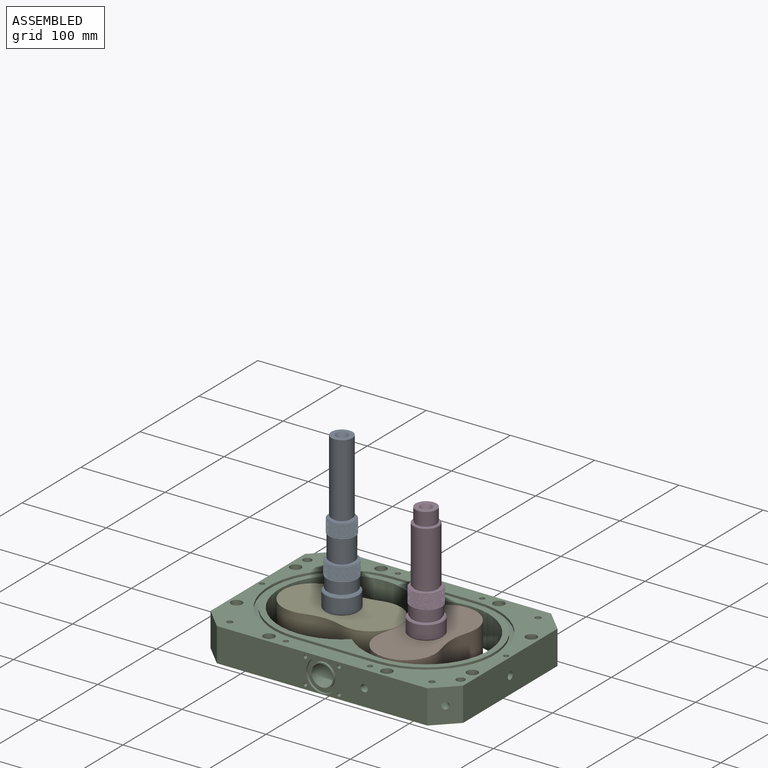
[diagram: assembled view]
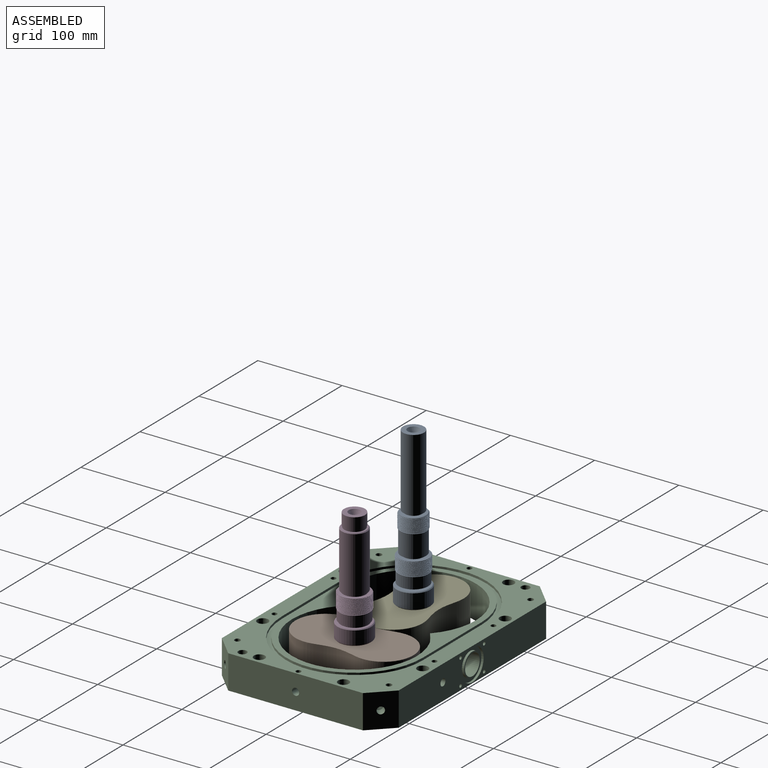
[diagram: assembled view, second angle]
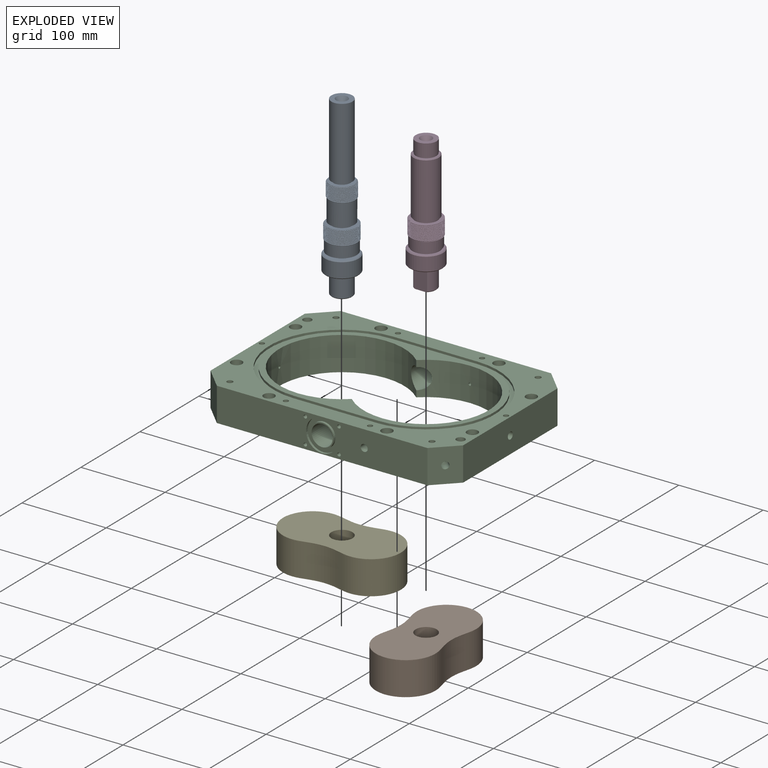
[diagram: exploded view]
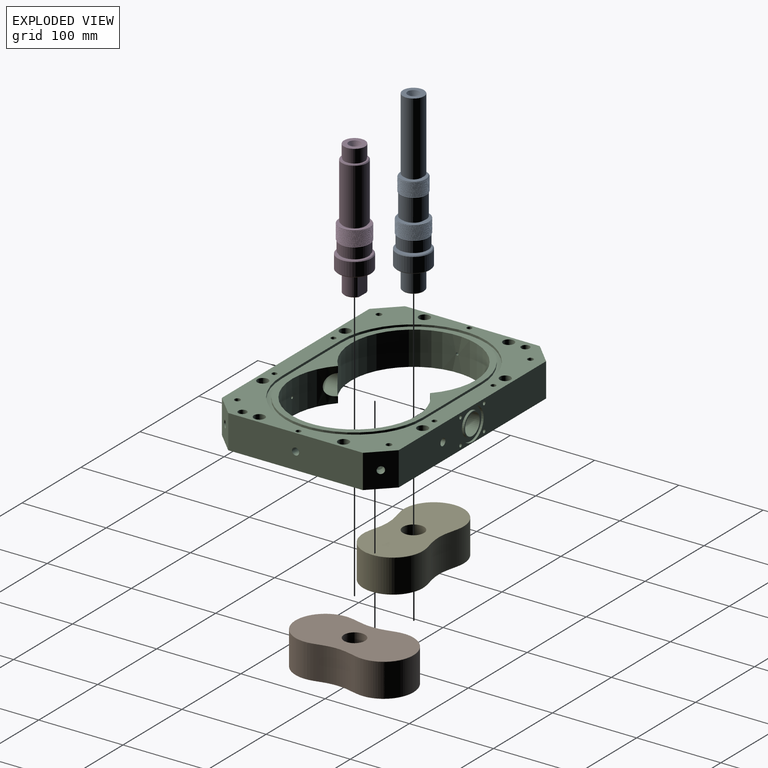
[diagram: exploded view, second angle]
ASSEMBLY  parts=5 mates=4
PART A: 45 faces, bbox 40.5x210.5x40.5 mm
  f0: cylinder r=15mm len=30mm, axis (0,1,0), area 2349.7mm2, adj f11,f12,f36,f38,f39,f40,f41
  f1: cylinder r=15.75mm len=31.5mm, axis (0,1,0), area 254.8mm2, adj f11,f28,f34,f35
  f2: cylinder r=18.25mm len=36.5mm, axis (0,1,0), area 277.8mm2, adj f14,f15,f32,f33
  f3: cone r=3.15mm half-angle=59deg, axis (0,-1,0), area 36.4mm2, adj f4
  f4: cylinder r=3.15mm len=6.3mm, axis (0,1,0), area 68.1mm2, adj f3,f5
  f5: cone r=7mm half-angle=30deg, axis (0,-1,0), area 245.5mm2, adj f4,f6
  f6: plane 25x25mm, normal (0,-1,0), area 336.9mm2, adj f5,f7
  f7: cylinder r=12.5mm len=86mm, axis (0,1,0), area 6754.4mm2, adj f6,f8
  f8: plane 25x25mm, normal (0,1,0), area 177.5mm2, adj f7,f9
  f9: cylinder r=9.99mm len=19.98mm, axis (0,1,0), area 125.5mm2, adj f8,f10
  f10: plane 29.5x29.5mm, normal (0,-1,0), area 370.1mm2, adj f9,f28
  f11: plane 30.98x30.86mm, normal (0,1,0), area 31.3mm2, adj f0,f1,f34,f35
  f12: plane 30x30mm, normal (0,1,0), area 244.6mm2, adj f0,f13
  f13: cylinder r=12.13mm len=24.26mm, axis (0,1,0), area 152.4mm2, adj f12,f14
  f14: plane 36.1x36.08mm, normal (0,-1,0), area 535.3mm2, adj f2,f13,f31,f32,f33
  f15: plane 35.98x35.87mm, normal (0,1,0), area 36.4mm2, adj f2,f16,f32,f33
  f16: cylinder r=17.5mm len=35mm, axis (0,1,0), area 1484.4mm2, adj f15,f17,f30
  f17: plane 35x35mm, normal (0,1,0), area 430.6mm2, adj f16,f18
  f18: cylinder r=13.01mm len=26.01mm, axis (0,1,0), area 163.5mm2, adj f17,f19
  f19: plane 38x38mm, normal (0,-1,0), area 602.6mm2, adj f18,f27
  f20: cylinder r=20mm len=40mm, axis (0,1,0), area 2199.1mm2, adj f26,f27
  f21: plane 38x38mm, normal (0,1,0), area 835.3mm2, adj f22,f26
  f22: cylinder r=9.75mm len=19.51mm, axis (0,1,0), area 122.6mm2, adj f21,f23
  f23: plane 25x25mm, normal (0,-1,0), area 192.1mm2, adj f22,f24
  f24: cylinder r=12.5mm len=25mm, axis (0,1,0), area 1727.9mm2, adj f23,f29
  f25: plane 23x23mm, normal (0,1,0), area 351.9mm2, adj f29,f44
  f26: cone r=19mm half-angle=45deg, axis (0,-1,0), area 173.3mm2, adj f20,f21
  f27: cone r=20mm half-angle=45deg, axis (0,1,0), area 173.3mm2, adj f19,f20
  f28: cone r=15.75mm half-angle=45deg, axis (0,1,0), area 76.2mm2, adj f1,f10,f34,f35,f37
  f29: cone r=11.5mm half-angle=45deg, axis (0,-1,0), area 106.6mm2, adj f24,f25
  f30: plane 19.72x18.49mm, normal (0,-1,0), area 1mm2, adj f16,f31,f32,f33
  f31: bspline ~34.94x34.94mm, area 454mm2, adj f14,f30,f32,f33
  f32: bspline ~36.66x36.66mm, area 1109.3mm2, adj f2,f14,f15,f30,f31
  f33: bspline ~36.67x36.67mm, area 1125.4mm2, adj f2,f14,f15,f30,f31
  f34: bspline ~31.67x31.67mm, area 966mm2, adj f1,f11,f28,f36,f37
  f35: bspline ~31.66x31.66mm, area 943mm2, adj f1,f11,f28,f36,f37
  f36: plane 17x15.78mm, normal (0,-1,0), area 0.8mm2, adj f0,f34,f35,f37
  f37: bspline ~29.94x29.94mm, area 394.5mm2, adj f28,f34,f35,f36
  f38: cylinder r=4mm len=8mm, axis (0,0,-1), area 46.9mm2, adj f0,f39,f41,f42
  f39: plane 12x3.46mm, normal (1,0,0), area 41.5mm2, adj f0,f38,f40,f42
  f40: cylinder r=4mm len=8mm, axis (0,0,-1), area 46.9mm2, adj f0,f39,f41,f42
  f41: plane 12x3.46mm, normal (-1,0,0), area 41.5mm2, adj f0,f38,f40,f42
  f42: plane 20x8mm, normal (0,0,1), area 146.3mm2, adj f38,f39,f40,f41
  f43: cone r=4.5mm half-angle=59deg, axis (0,1,0), area 74.2mm2, adj f44
  f44: cylinder r=4.5mm len=19mm, axis (0,1,0), area 537.2mm2, adj f25,f43
PART B: 23 faces, bbox 70.7x140x39.8 mm
  f0: extruded ~39.8x34.79mm, area 2258.3mm2, adj f1,f13,f14,f15
  f1: plane 39.8x0.03mm, normal (1,0,0), area 1.2mm2, adj f0,f2,f14,f15
  f2: extruded ~39.8x35.33mm, area 1433.1mm2, adj f1,f3,f14,f15
  f3: extruded ~39.8x35.33mm, area 1433.1mm2, adj f2,f4,f14,f15
  f4: plane 39.8x0.03mm, normal (1,0,0), area 1.2mm2, adj f3,f5,f14,f15
  f5: extruded ~39.8x34.79mm, area 2258.3mm2, adj f4,f6,f14,f15
  f6: plane 39.8x1.14mm, normal (0,-1,0), area 45.4mm2, adj f5,f7,f14,f15
  f7: extruded ~39.8x34.79mm, area 2258.3mm2, adj f6,f8,f14,f15
  f8: plane 39.8x0.03mm, normal (-1,0,0), area 1.2mm2, adj f7,f9,f14,f15
  f9: extruded ~39.8x35.33mm, area 1433.1mm2, adj f8,f10,f14,f15
  f10: extruded ~39.8x35.33mm, area 1433.1mm2, adj f9,f11,f14,f15
  f11: plane 39.8x0.03mm, normal (-1,0,0), area 1.2mm2, adj f10,f12,f14,f15
  f12: extruded ~39.8x34.79mm, area 2258.3mm2, adj f11,f13,f14,f15
  f13: plane 39.8x1.14mm, normal (0,1,0), area 45.4mm2, adj f0,f12,f14,f15
  f14: plane 140x70.72mm, normal (0,0,-1), area 8007.2mm2, adj f0,f1,f2,f3,f4,f5,f6,f7
  f15: plane 140x70.72mm, normal (0,0,1), area 7858.7mm2, adj f0,f1,f2,f3,f4,f5,f6,f7
  f16: cylinder r=12.5mm len=25mm, axis (0,0,1), area 1955.6mm2, adj f15,f17
  f17: plane 25x25mm, normal (0,0,1), area 412.3mm2, adj f16,f18
  f18: cylinder r=5mm len=10mm, axis (0,0,1), area 153.9mm2, adj f17,f19
  f19: plane 20x20mm, normal (0,0,-1), area 235.6mm2, adj f18,f20
  f20: cylinder r=10mm len=20mm, axis (0,0,1), area 628.3mm2, adj f14,f19
  f21: cylinder r=3mm len=10mm, axis (0,0,1), area 188.5mm2, adj f14,f22
  f22: cone r=3mm half-angle=59deg, axis (0,0,-1), area 33mm2, adj f21
PART C: 110 faces, bbox 300x210x40 mm
  f0: plane 250x40mm, normal (0,-1,0), area 8754.6mm2, adj f7,f8,f13,f14,f84,f87,f89,f91
  f1: plane 28x28mm, normal (0,-1,0), area 124.9mm2, adj f82,f83
  f2: cylinder r=74.08mm len=148.16mm, axis (0,0,-1), area 13075.2mm2, adj f3,f5,f14,f70,f82,f103
  f3: cylinder r=74.08mm len=148.16mm, axis (0,0,-1), area 13047.2mm2, adj f2,f5,f14,f70,f82,f94,f95,f96
  f4: plane 28x28mm, normal (0,1,0), area 124.9mm2, adj f70,f71
  f5: plane 262x162mm, normal (0,0,1), area 5973.5mm2, adj f2,f3,f20,f21,f22,f23
  f6: plane 160x40mm, normal (-1,0,0), area 6392.9mm2, adj f7,f12,f13,f14,f103
  f7: plane 40x25mm, normal (-0.71,-0.71,0), area 1414.2mm2, adj f0,f6,f13,f14
  f8: plane 40x25mm, normal (0.71,-0.71,0), area 1358.4mm2, adj f0,f9,f13,f14,f107
  f9: plane 160x40mm, normal (1,0,0), area 6344.1mm2, adj f8,f10,f13,f14,f102
  f10: plane 40x25mm, normal (0.71,0.71,0), area 1358.4mm2, adj f9,f11,f13,f14,f98
  f11: plane 250x40mm, normal (0,1,0), area 8754.6mm2, adj f10,f12,f13,f14,f72,f75,f77,f79
  f12: plane 40x25mm, normal (-0.71,0.71,0), area 1414.2mm2, adj f6,f11,f13,f14
  f13: plane 300x210mm, normal (0,0,1), area 19780.9mm2, adj f0,f6,f7,f8,f9,f10,f11,f12
  f14: plane 300x210mm, normal (0,0,-1), area 30300.5mm2, adj f0,f2,f3,f6,f7,f8,f9,f10
  f15: cylinder r=86mm len=172mm, axis (0,0,1), area 729.5mm2, adj f13,f16,f18,f19
  f16: plane 100x2.7mm, normal (0,-1,0), area 270mm2, adj f13,f15,f17,f19
  f17: cylinder r=86mm len=172mm, axis (0,0,1), area 729.5mm2, adj f13,f16,f18,f19
  f18: plane 100x2.7mm, normal (0,1,0), area 270mm2, adj f13,f15,f17,f19
  f19: plane 272x172mm, normal (0,0,1), area 3623.2mm2, adj f15,f16,f17,f18,f20,f21,f22,f23
  f20: cylinder r=81mm len=162mm, axis (0,0,1), area 687.1mm2, adj f5,f19,f21,f23
  f21: plane 100x2.7mm, normal (0,1,0), area 270mm2, adj f5,f19,f20,f22
  f22: cylinder r=81mm len=162mm, axis (0,0,1), area 687.1mm2, adj f5,f19,f21,f23
  f23: plane 100x2.7mm, normal (0,-1,0), area 270mm2, adj f5,f19,f20,f22
  f24: cylinder r=5mm len=40mm, axis (0,0,1), area 1256.6mm2, adj f13,f14
  f25: cylinder r=5mm len=40mm, axis (0,0,1), area 1256.6mm2, adj f13,f14
  f26: cone r=3mm half-angle=59deg, axis (0,0,1), area 33mm2, adj f27
  f27: cylinder r=3mm len=10mm, axis (0,0,1), area 188.5mm2, adj f13,f26
  f28: cone r=3mm half-angle=59deg, axis (0,0,1), area 33mm2, adj f29
  f29: cylinder r=3mm len=10mm, axis (0,0,1), area 188.5mm2, adj f13,f28
  f30: cone r=3mm half-angle=59deg, axis (0,0,1), area 33mm2, adj f31
  f31: cylinder r=3mm len=10mm, axis (0,0,1), area 188.5mm2, adj f13,f30
  f32: cone r=3mm half-angle=59deg, axis (0,0,1), area 33mm2, adj f33
  f33: cylinder r=3mm len=10mm, axis (0,0,1), area 188.5mm2, adj f13,f32
  f34: cone r=3mm half-angle=59deg, axis (0,0,1), area 33mm2, adj f35
  f35: cylinder r=3mm len=10mm, axis (0,0,1), area 188.5mm2, adj f13,f34
  f36: cone r=3mm half-angle=59deg, axis (0,0,1), area 33mm2, adj f37
  f37: cylinder r=3mm len=10mm, axis (0,0,1), area 188.5mm2, adj f13,f36
  f38: cone r=3.4mm half-angle=59deg, axis (0,0,1), area 42.4mm2, adj f39
  f39: cylinder r=3.4mm len=19.75mm, axis (0,0,1), area 421.9mm2, adj f13,f38
  f40: cone r=3.4mm half-angle=59deg, axis (0,0,1), area 42.4mm2, adj f41
  f41: cylinder r=3.4mm len=19.75mm, axis (0,0,1), area 421.9mm2, adj f13,f40
  f42: cone r=3.4mm half-angle=59deg, axis (0,0,1), area 42.4mm2, adj f43
  f43: cylinder r=3.4mm len=19.75mm, axis (0,0,1), area 421.9mm2, adj f13,f42
  f44: cone r=3.4mm half-angle=59deg, axis (0,0,1), area 42.4mm2, adj f45
  f45: cylinder r=3.4mm len=19.75mm, axis (0,0,1), area 421.9mm2, adj f13,f44
  f46: cylinder r=4.25mm len=20mm, axis (0,0,1), area 534.1mm2, adj f14,f47
  f47: plane 13x13mm, normal (0,0,1), area 76mm2, adj f46,f48
  f48: cylinder r=6.5mm len=20mm, axis (0,0,1), area 816.8mm2, adj f13,f47
  f49: cylinder r=4.25mm len=20mm, axis (0,0,1), area 534.1mm2, adj f14,f50
  f50: plane 13x13mm, normal (0,0,1), area 76mm2, adj f49,f51
  f51: cylinder r=6.5mm len=20mm, axis (0,0,1), area 816.8mm2, adj f13,f50
  f52: cylinder r=4.25mm len=20mm, axis (0,0,1), area 534.1mm2, adj f14,f53
  f53: plane 13x13mm, normal (0,0,1), area 76mm2, adj f52,f54
  f54: cylinder r=6.5mm len=20mm, axis (0,0,1), area 816.8mm2, adj f13,f53
  f55: cylinder r=4.25mm len=20mm, axis (0,0,1), area 534.1mm2, adj f14,f56
  f56: plane 13x13mm, normal (0,0,1), area 76mm2, adj f55,f57
  f57: cylinder r=6.5mm len=20mm, axis (0,0,1), area 816.8mm2, adj f13,f56
  f58: cylinder r=4.25mm len=20mm, axis (0,0,1), area 534.1mm2, adj f14,f59
  f59: plane 13x13mm, normal (0,0,1), area 76mm2, adj f58,f60
  f60: cylinder r=6.5mm len=20mm, axis (0,0,1), area 816.8mm2, adj f13,f59
  f61: cylinder r=4.25mm len=20mm, axis (0,0,1), area 534.1mm2, adj f14,f62
  f62: plane 13x13mm, normal (0,0,1), area 76mm2, adj f61,f63
  f63: cylinder r=6.5mm len=20mm, axis (0,0,1), area 816.8mm2, adj f13,f62
  f64: cylinder r=4.25mm len=20mm, axis (0,0,1), area 534.1mm2, adj f14,f65
  f65: plane 13x13mm, normal (0,0,1), area 76mm2, adj f64,f66
  f66: cylinder r=6.5mm len=20mm, axis (0,0,1), area 816.8mm2, adj f13,f65
  f67: cylinder r=4.25mm len=20mm, axis (0,0,1), area 534.1mm2, adj f14,f68
  f68: plane 13x13mm, normal (0,0,1), area 76mm2, adj f67,f69
  f69: cylinder r=6.5mm len=20mm, axis (0,0,1), area 816.8mm2, adj f13,f68
  f70: cylinder r=12.5mm len=50.34mm, axis (0,1,0), area 3470.6mm2, adj f2,f3,f4
  f71: cylinder r=14mm len=28mm, axis (0,1,0), area 237.5mm2, adj f4,f73
  f72: cylinder r=19mm len=38mm, axis (0,1,0), area 322.3mm2, adj f11,f73
  f73: plane 38x38mm, normal (0,1,0), area 518.4mm2, adj f71,f72
  f74: cone r=2.1mm half-angle=59deg, axis (0,1,0), area 16.2mm2, adj f75
  f75: cylinder r=2.1mm len=10mm, axis (0,1,0), area 131.9mm2, adj f11,f74
  f76: cone r=2.1mm half-angle=59deg, axis (0,1,0), area 16.2mm2, adj f77
  f77: cylinder r=2.1mm len=10mm, axis (0,1,0), area 131.9mm2, adj f11,f76
  f78: cone r=2.1mm half-angle=59deg, axis (0,1,0), area 16.2mm2, adj f79
  f79: cylinder r=2.1mm len=10mm, axis (0,1,0), area 131.9mm2, adj f11,f78
  f80: cone r=2.1mm half-angle=59deg, axis (0,1,0), area 16.2mm2, adj f81
  f81: cylinder r=2.1mm len=10mm, axis (0,1,0), area 131.9mm2, adj f11,f80
  f82: cylinder r=12.5mm len=50.34mm, axis (0,-1,0), area 3470.7mm2, adj f1,f2,f3
  f83: cylinder r=14mm len=28mm, axis (0,-1,0), area 237.5mm2, adj f1,f85
  f84: cylinder r=19mm len=38mm, axis (0,-1,0), area 322.3mm2, adj f0,f85
  f85: plane 38x38mm, normal (0,-1,0), area 518.4mm2, adj f83,f84
  f86: cone r=2.1mm half-angle=59deg, axis (0,-1,0), area 16.2mm2, adj f87
  f87: cylinder r=2.1mm len=10mm, axis (0,-1,0), area 131.9mm2, adj f0,f86
  f88: cone r=2.1mm half-angle=59deg, axis (0,-1,0), area 16.2mm2, adj f89
  f89: cylinder r=2.1mm len=10mm, axis (0,-1,0), area 131.9mm2, adj f0,f88
  f90: cone r=2.1mm half-angle=59deg, axis (0,-1,0), area 16.2mm2, adj f91
  f91: cylinder r=2.1mm len=10mm, axis (0,-1,0), area 131.9mm2, adj f0,f90
  f92: cone r=2.1mm half-angle=59deg, axis (0,-1,0), area 16.2mm2, adj f93
  f93: cylinder r=2.1mm len=10mm, axis (0,-1,0), area 131.9mm2, adj f0,f92
  f94: cylinder r=1.5mm len=14.29mm, axis (1,0,0), area 134.7mm2, adj f3,f101
  f95: cylinder r=1.5mm len=31.64mm, axis (0.71,0.71,0), area 392.6mm2, adj f3,f97
  f96: cylinder r=1.5mm len=19.29mm, axis (0,1,0), area 181.8mm2, adj f3,f99
  f97: cone r=4.22mm half-angle=59deg, axis (0.71,0.71,0), area 56.9mm2, adj f95,f98
  f98: cylinder r=4.22mm len=13.03mm, axis (0.71,0.71,0), area 264.9mm2, adj f10,f97
  f99: cone r=4.22mm half-angle=59deg, axis (0,1,0), area 56.9mm2, adj f96,f100
  f100: cylinder r=4.22mm len=10mm, axis (0,1,0), area 264.9mm2, adj f11,f99
  f101: cone r=4.22mm half-angle=59deg, axis (1,0,0), area 56.9mm2, adj f94,f102
  f102: cylinder r=4.22mm len=10mm, axis (1,0,0), area 264.9mm2, adj f9,f101
  f103: cylinder r=1.5mm len=25.92mm, axis (1,0,0), area 244.3mm2, adj f2,f6
  f104: cylinder r=1.5mm len=31.64mm, axis (0.71,-0.71,0), area 392.6mm2, adj f3,f106
  f105: cylinder r=1.5mm len=19.29mm, axis (0,-1,0), area 181.8mm2, adj f3,f108
  f106: cone r=4.22mm half-angle=59deg, axis (0.71,-0.71,0), area 56.9mm2, adj f104,f107
  f107: cylinder r=4.22mm len=13.03mm, axis (0.71,-0.71,0), area 264.9mm2, adj f8,f106
  f108: cone r=4.22mm half-angle=59deg, axis (0,-1,0), area 56.9mm2, adj f105,f109
  f109: cylinder r=4.22mm len=10mm, axis (0,-1,0), area 264.9mm2, adj f0,f108
PART D: 40 faces, bbox 40.5x160.5x40.5 mm
  f0: cylinder r=12.5mm len=22mm, axis (0,1,0), area 474.8mm2, adj f1,f31,f32,f37
  f1: plane 19x6.3mm, normal (0,1,0), area 25.5mm2, adj f0,f2,f31,f32
  f2: cylinder r=11.34mm len=19mm, axis (0,1,0), area 45mm2, adj f1,f9,f31,f32
  f3: cylinder r=3.15mm len=6.3mm, axis (0,1,0), area 68.1mm2, adj f4,f26
  f4: cone r=3.15mm half-angle=59deg, axis (0,1,0), area 36.4mm2, adj f3
  f5: plane 23x19mm, normal (0,-1,0), area 343.9mm2, adj f31,f32,f36,f37,f39
  f6: cylinder r=12.5mm len=22mm, axis (0,1,0), area 474.8mm2, adj f7,f31,f32,f36
  f7: plane 19x6.3mm, normal (0,1,0), area 25.5mm2, adj f6,f8,f31,f32
  f8: cylinder r=11.34mm len=19mm, axis (0,1,0), area 45mm2, adj f7,f9,f31,f32
  f9: plane 38x38mm, normal (0,-1,0), area 760.9mm2, adj f2,f8,f31,f32,f33
  f10: cylinder r=20mm len=40mm, axis (0,1,0), area 2010.6mm2, adj f33,f34
  f11: plane 38x38mm, normal (0,1,0), area 318.8mm2, adj f12,f34
  f12: cylinder r=16.11mm len=32.22mm, axis (0,1,0), area 202.4mm2, adj f11,f13
  f13: plane 35x35mm, normal (0,-1,0), area 146.7mm2, adj f12,f14
  f14: cylinder r=17.5mm len=35mm, axis (0,1,0), area 1319.5mm2, adj f13,f15,f27
  f15: plane 36x35.89mm, normal (0,-1,0), area 36.4mm2, adj f14,f16,f28,f30
  f16: cylinder r=18.25mm len=36.5mm, axis (0,1,0), area 287.6mm2, adj f15,f17,f28,f30
  f17: plane 36.11x36.08mm, normal (0,1,0), area 432.8mm2, adj f16,f18,f28,f29,f30
  f18: cylinder r=13.41mm len=26.82mm, axis (0,1,0), area 168.5mm2, adj f17,f19
  f19: plane 30x30mm, normal (0,-1,0), area 142.1mm2, adj f18,f20
  f20: cylinder r=15mm len=66mm, axis (0,1,0), area 6220.4mm2, adj f19,f35
  f21: plane 28x28mm, normal (0,1,0), area 159.8mm2, adj f22,f35
  f22: cylinder r=12.05mm len=24.09mm, axis (0,1,0), area 151.4mm2, adj f21,f23
  f23: plane 25x25mm, normal (0,-1,0), area 35mm2, adj f22,f24
  f24: cylinder r=12.5mm len=25mm, axis (0,1,0), area 1099.6mm2, adj f23,f25
  f25: plane 25x25mm, normal (0,1,0), area 336.9mm2, adj f24,f26
  f26: cone r=7mm half-angle=30deg, axis (0,1,0), area 245.5mm2, adj f3,f25
  f27: plane 19.77x18.54mm, normal (0,1,0), area 1mm2, adj f14,f28,f29,f30
  f28: bspline ~36.66x36.66mm, area 1208.6mm2, adj f15,f16,f17,f27,f29
  f29: bspline ~34.94x34.94mm, area 494.7mm2, adj f17,f27,f28,f30
  f30: bspline ~36.67x36.67mm, area 1229.8mm2, adj f15,f16,f17,f27,f29
  f31: plane 25.08x16.32mm, normal (0,0,-1), area 396.9mm2, adj f0,f1,f2,f5,f6,f7,f8,f9
  f32: plane 25.08x16.32mm, normal (0,0,1), area 396.9mm2, adj f0,f1,f2,f5,f6,f7,f8,f9
  f33: cone r=20mm half-angle=45deg, axis (0,1,0), area 173.3mm2, adj f9,f10
  f34: cone r=19mm half-angle=45deg, axis (0,-1,0), area 173.3mm2, adj f10,f11
  f35: cone r=14mm half-angle=45deg, axis (0,-1,0), area 128.8mm2, adj f20,f21
  f36: cone r=12.5mm half-angle=45deg, axis (0,1,0), area 31.1mm2, adj f5,f6,f31,f32
  f37: cone r=12.5mm half-angle=45deg, axis (0,1,0), area 31.1mm2, adj f0,f5,f31,f32
  f38: cone r=3.4mm half-angle=59deg, axis (0,-1,0), area 42.4mm2, adj f39
  f39: cylinder r=3.4mm len=19.75mm, axis (0,-1,0), area 421.9mm2, adj f5,f38
PART E: same geometry as B
PLACE A rot(axis=(-0.58,-0.57,0.57),119.5deg) t=(-50,0,205.1)mm
PLACE B t=(50,0,-0.1)mm
PLACE C at identity fixed
PLACE D rot(axis=(1,-0.01,-0.01),90deg) t=(50,0,-5.1)mm
PLACE E rot(axis=(0,0,1),90deg) t=(-50,0,0.1)mm
MATE revolute E.f16 <-> C.f2  axis (0,0,1) through (-50,0,20)mm
MATE revolute A.f0 <-> E.f16  axis (0,0,-1) through (-50,0,-4.9)mm
MATE revolute B.f16 <-> C.f3  axis (0,0,-1) through (50,0,-20)mm
MATE revolute D.f0 <-> B.f16  axis (0,0,-1) through (50,0,-5.1)mm
